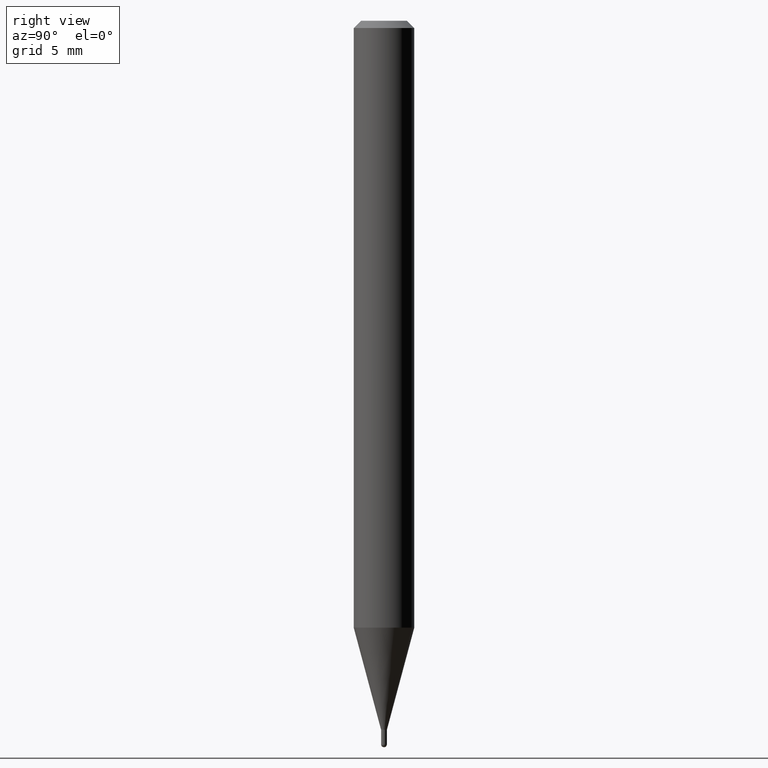
[diagram: clean part render]
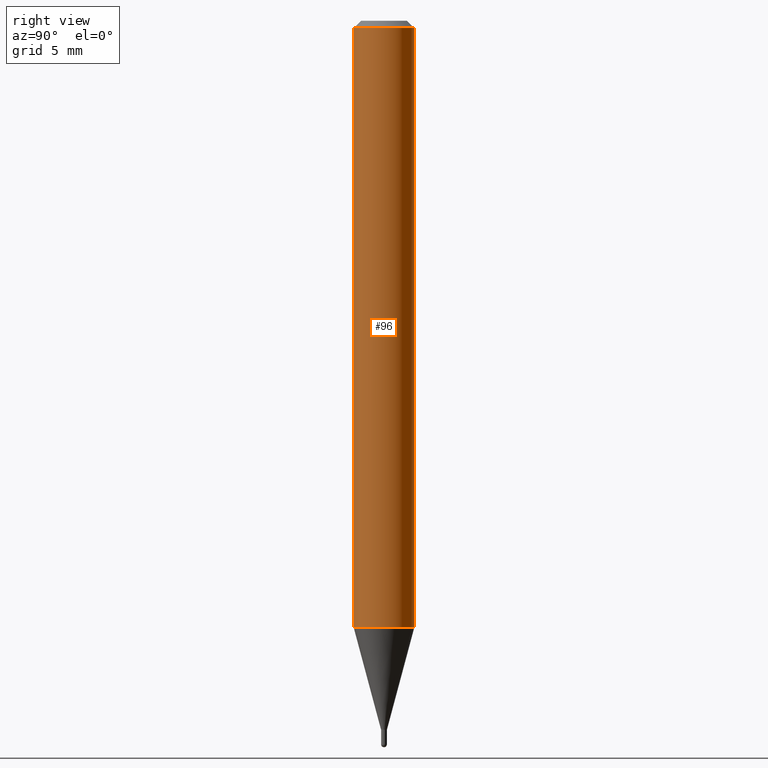
[diagram: same view with one face highlighted and labeled with its STEP entity id]
A machine part, right view. The second image highlights one B-rep face of the part: STEP entity #96.
In plain terms, the highlighted cylindrical surface (edge-blend (fillet) strip) has radius 1.5875 mm, axis along (-0, 0, 1).
Its self-contained STEP definition (entity closure, byte-faithful):
#14 = VERTEX_POINT ( 'NONE', #230 ) ;
#27 = EDGE_CURVE ( 'NONE', #14, #507, #262, .T. ) ;
#37 = LINE ( 'NONE', #421, #389 ) ;
#46 = EDGE_CURVE ( 'NONE', #507, #50, #37, .T. ) ;
#50 = VERTEX_POINT ( 'NONE', #77 ) ;
#66 = FACE_OUTER_BOUND ( 'NONE', #258, .T. ) ;
#68 = EDGE_CURVE ( 'NONE', #124, #50, #249, .T. ) ;
#77 = CARTESIAN_POINT ( 'NONE',  ( 4.440892098500933817E-16, 0.06249999999999995143, -0.01500000000000022669 ) ) ;
#96 = ADVANCED_FACE ( 'NONE', ( #66 ), #329, .T. ) ;
#124 = VERTEX_POINT ( 'NONE', #198 ) ;
#137 = DIRECTION ( 'NONE',  ( -2.445456695284808688E-29, 3.491498682341725193E-15, 1.000000000000000000 ) ) ;
#155 = DIRECTION ( 'NONE',  ( -2.445456695284808407E-29, 3.491498682341725193E-15, 1.000000000000000000 ) ) ;
#198 = CARTESIAN_POINT ( 'NONE',  ( -4.364351673553912750E-16, -0.06250000000000005551, -0.01499999999999979128 ) ) ;
#203 = AXIS2_PLACEMENT_3D ( 'NONE', #399, #480, #245 ) ;
#230 = CARTESIAN_POINT ( 'NONE',  ( -4.364351673553611010E-16, -0.06250000000000438538, -1.253139129372364824 ) ) ;
#245 = DIRECTION ( 'NONE',  ( -6.982962677686265922E-15, -1.000000000000000000, 3.491498682341725193E-15 ) ) ;
#249 = CIRCLE ( 'NONE', #306, 0.06250000000000000000 ) ;
#258 = EDGE_LOOP ( 'NONE', ( #387, #345, #484, #469 ) ) ;
#260 = VECTOR ( 'NONE', #137, 39.37007874015748143 ) ;
#262 = CIRCLE ( 'NONE', #281, 0.06250000000000000000 ) ;
#281 = AXIS2_PLACEMENT_3D ( 'NONE', #424, #321, #391 ) ;
#306 = AXIS2_PLACEMENT_3D ( 'NONE', #347, #155, #474 ) ;
#321 = DIRECTION ( 'NONE',  ( -2.445456695284808407E-29, 3.491498682341725193E-15, 1.000000000000000000 ) ) ;
#329 = CYLINDRICAL_SURFACE ( 'NONE', #203, 0.06250000000000000000 ) ;
#342 = CARTESIAN_POINT ( 'NONE',  ( -4.364351673553916201E-16, -0.06250000000000000000, 2.182186676463578245E-16 ) ) ;
#345 = ORIENTED_EDGE ( 'NONE', *, *, #46, .T. ) ;
#347 = CARTESIAN_POINT ( 'NONE',  ( 3.668185042927215431E-31, -5.237248023512590131E-17, -0.01500000000000000812 ) ) ;
#350 = CARTESIAN_POINT ( 'NONE',  ( 4.440892098500930859E-16, 0.06249999999999561462, -1.253139129372365490 ) ) ;
#387 = ORIENTED_EDGE ( 'NONE', *, *, #27, .T. ) ;
#389 = VECTOR ( 'NONE', #511, 39.37007874015748143 ) ;
#391 = DIRECTION ( 'NONE',  ( -6.982962677686265922E-15, -1.000000000000000000, 4.370956789862821150E-15 ) ) ;
#399 = CARTESIAN_POINT ( 'NONE',  ( 0.000000000000000000, 0.000000000000000000, 0.000000000000000000 ) ) ;
#421 = CARTESIAN_POINT ( 'NONE',  ( 4.440892098500625669E-16, 0.06250000000000000000, -2.182186676463578245E-16 ) ) ;
#424 = CARTESIAN_POINT ( 'NONE',  ( 3.064497474047025979E-29, -4.375333618994468371E-15, -1.253139129372365046 ) ) ;
#425 = EDGE_CURVE ( 'NONE', #14, #124, #490, .T. ) ;
#469 = ORIENTED_EDGE ( 'NONE', *, *, #425, .F. ) ;
#474 = DIRECTION ( 'NONE',  ( -6.982962677686265922E-15, -1.000000000000000000, 3.483106191921935554E-15 ) ) ;
#480 = DIRECTION ( 'NONE',  ( -2.445456695284808407E-29, 3.491498682341725193E-15, 1.000000000000000000 ) ) ;
#484 = ORIENTED_EDGE ( 'NONE', *, *, #68, .F. ) ;
#490 = LINE ( 'NONE', #342, #260 ) ;
#507 = VERTEX_POINT ( 'NONE', #350 ) ;
#511 = DIRECTION ( 'NONE',  ( -2.445456695284808688E-29, 3.491498682341725193E-15, 1.000000000000000000 ) ) ;